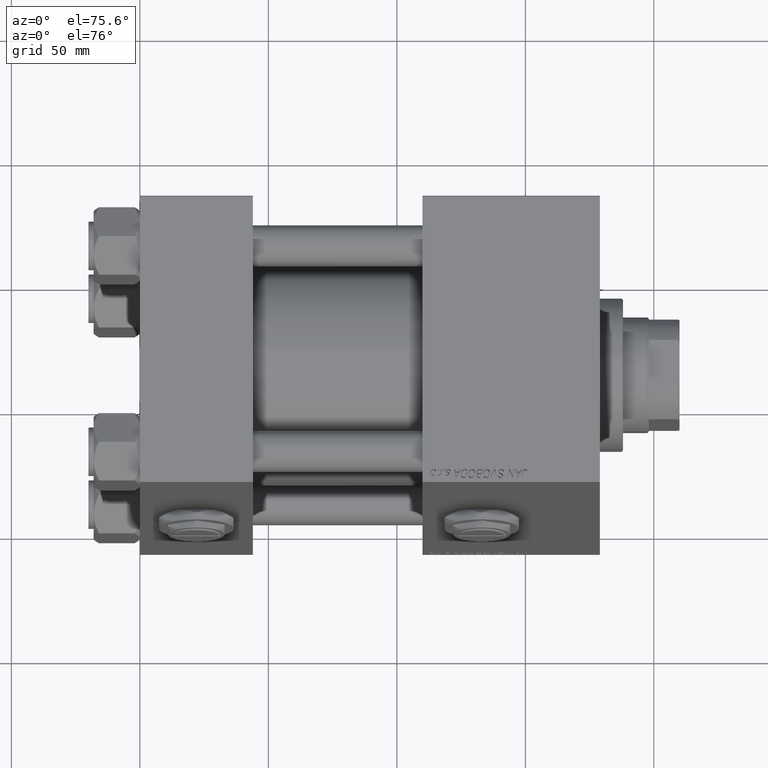
[diagram: clean part render]
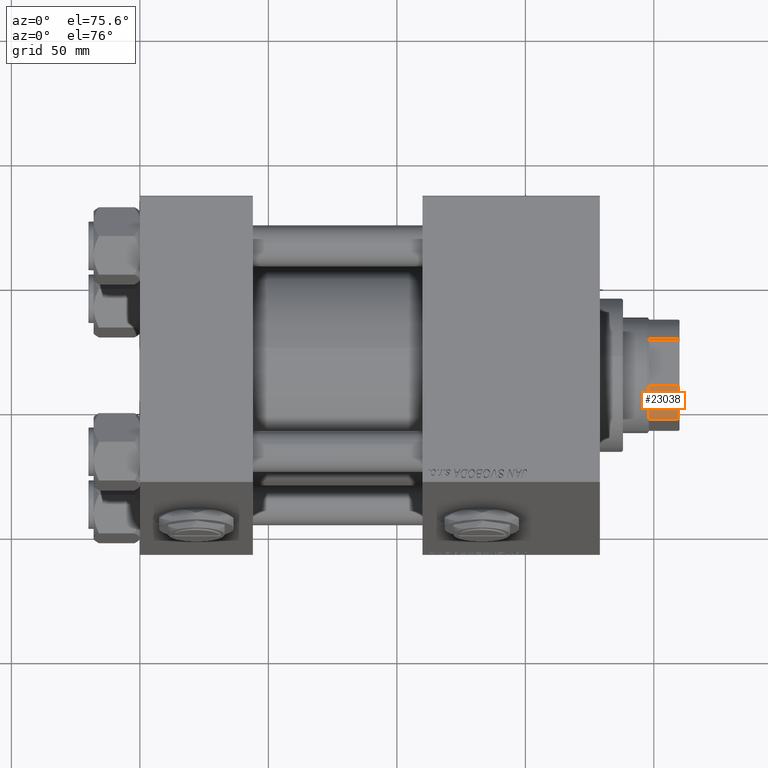
[diagram: same view with one face highlighted and labeled with its STEP entity id]
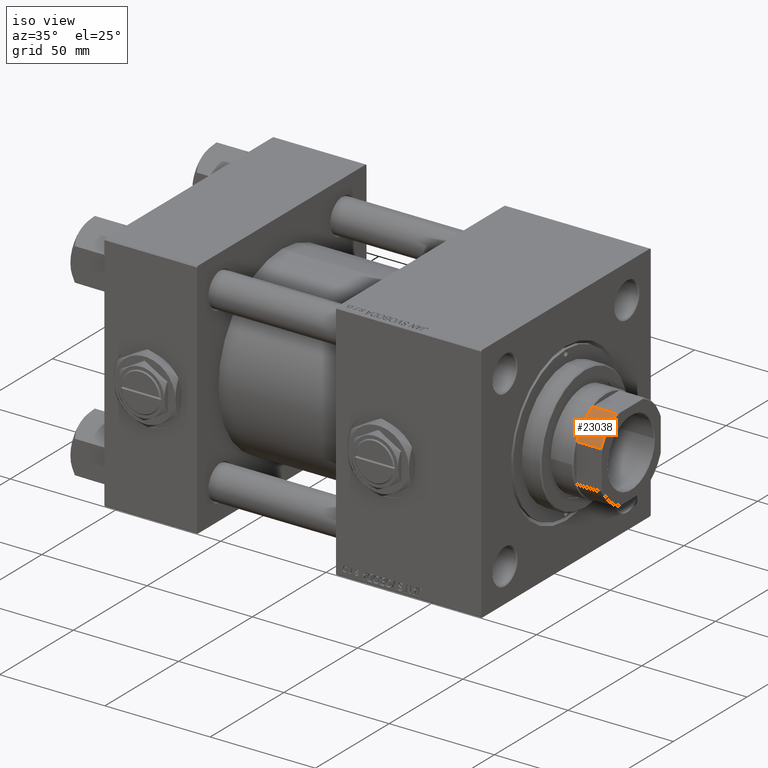
[diagram: same view with one face highlighted and labeled with its STEP entity id]
A machine part, auxiliary view. The second image highlights one B-rep face of the part: STEP entity #23038.
A second angle (iso view) of the same face is appended — the face is thin or edge-on in the first view.
In plain terms, the highlighted cylindrical surface (partial cylindrical patch) has radius 22 mm, axis along (1, 0, 0).
Its self-contained STEP definition (entity closure, byte-faithful):
#291 = DIRECTION ( 'NONE',  ( -0.000000000000000000, -0.000000000000000000, 1.000000000000000000 ) ) ;
#1459 = VERTEX_POINT ( 'NONE', #24496 ) ;
#1741 = VECTOR ( 'NONE', #18397, 1000.000000000000000 ) ;
#2579 = VERTEX_POINT ( 'NONE', #37901 ) ;
#5638 = EDGE_CURVE ( 'NONE', #47887, #1459, #44038, .T. ) ;
#6865 = EDGE_LOOP ( 'NONE', ( #51780, #10199, #35473, #22235 ) ) ;
#10047 = AXIS2_PLACEMENT_3D ( 'NONE', #29141, #21145, #45439 ) ;
#10199 = ORIENTED_EDGE ( 'NONE', *, *, #5638, .T. ) ;
#12577 = DIRECTION ( 'NONE',  ( 1.000000000000000000, 0.000000000000000000, 0.000000000000000000 ) ) ;
#12584 = LINE ( 'NONE', #33146, #29864 ) ;
#13476 = EDGE_CURVE ( 'NONE', #2579, #47639, #33059, .T. ) ;
#16328 = CYLINDRICAL_SURFACE ( 'NONE', #49506, 22.00000000000000000 ) ;
#17469 = DIRECTION ( 'NONE',  ( 1.000000000000000000, 0.000000000000000000, 0.000000000000000000 ) ) ;
#18397 = DIRECTION ( 'NONE',  ( -0.000000000000000000, -0.000000000000000000, 1.000000000000000000 ) ) ;
#21145 = DIRECTION ( 'NONE',  ( 0.000000000000000000, 0.000000000000000000, 1.000000000000000000 ) ) ;
#22235 = ORIENTED_EDGE ( 'NONE', *, *, #13476, .T. ) ;
#22301 = EDGE_CURVE ( 'NONE', #47639, #47887, #12584, .T. ) ;
#22671 = LINE ( 'NONE', #46974, #1741 ) ;
#23038 = ADVANCED_FACE ( 'NONE', ( #32874 ), #16328, .T. ) ;
#23561 = AXIS2_PLACEMENT_3D ( 'NONE', #29753, #33221, #17469 ) ;
#24496 = CARTESIAN_POINT ( 'NONE',  ( 9.165151389911676105, -20.00000000000000000, 165.5000000000000284 ) ) ;
#28096 = CARTESIAN_POINT ( 'NONE',  ( 0.000000000000000000, 0.000000000000000000, -0.001000000000001000089 ) ) ;
#29141 = CARTESIAN_POINT ( 'NONE',  ( 0.000000000000000000, 0.000000000000000000, 154.0000000000000000 ) ) ;
#29753 = CARTESIAN_POINT ( 'NONE',  ( 0.000000000000000000, 0.000000000000000000, 165.5000000000000284 ) ) ;
#29864 = VECTOR ( 'NONE', #291, 1000.000000000000000 ) ;
#30826 = CARTESIAN_POINT ( 'NONE',  ( 19.99999999999999289, -9.165151389911693869, 154.0000000000000284 ) ) ;
#32874 = FACE_OUTER_BOUND ( 'NONE', #6865, .T. ) ;
#33059 = CIRCLE ( 'NONE', #10047, 22.00000000000002132 ) ;
#33146 = CARTESIAN_POINT ( 'NONE',  ( 19.99999999999999289, -9.165151389911693869, -0.001000000000001000089 ) ) ;
#33221 = DIRECTION ( 'NONE',  ( -0.000000000000000000, -0.000000000000000000, -1.000000000000000000 ) ) ;
#35473 = ORIENTED_EDGE ( 'NONE', *, *, #48107, .F. ) ;
#36835 = CARTESIAN_POINT ( 'NONE',  ( 19.99999999999999289, -9.165151389911693869, 165.5000000000000284 ) ) ;
#37901 = CARTESIAN_POINT ( 'NONE',  ( 9.165151389911676105, -20.00000000000000000, 154.0000000000000284 ) ) ;
#44038 = CIRCLE ( 'NONE', #23561, 22.00000000000000000 ) ;
#45439 = DIRECTION ( 'NONE',  ( 1.000000000000000000, 0.000000000000000000, 0.000000000000000000 ) ) ;
#46974 = CARTESIAN_POINT ( 'NONE',  ( 9.165151389911676105, -20.00000000000000000, -0.001000000000001000089 ) ) ;
#47639 = VERTEX_POINT ( 'NONE', #30826 ) ;
#47887 = VERTEX_POINT ( 'NONE', #36835 ) ;
#48107 = EDGE_CURVE ( 'NONE', #2579, #1459, #22671, .T. ) ;
#49184 = DIRECTION ( 'NONE',  ( -0.000000000000000000, -0.000000000000000000, 1.000000000000000000 ) ) ;
#49506 = AXIS2_PLACEMENT_3D ( 'NONE', #28096, #49184, #12577 ) ;
#51780 = ORIENTED_EDGE ( 'NONE', *, *, #22301, .T. ) ;